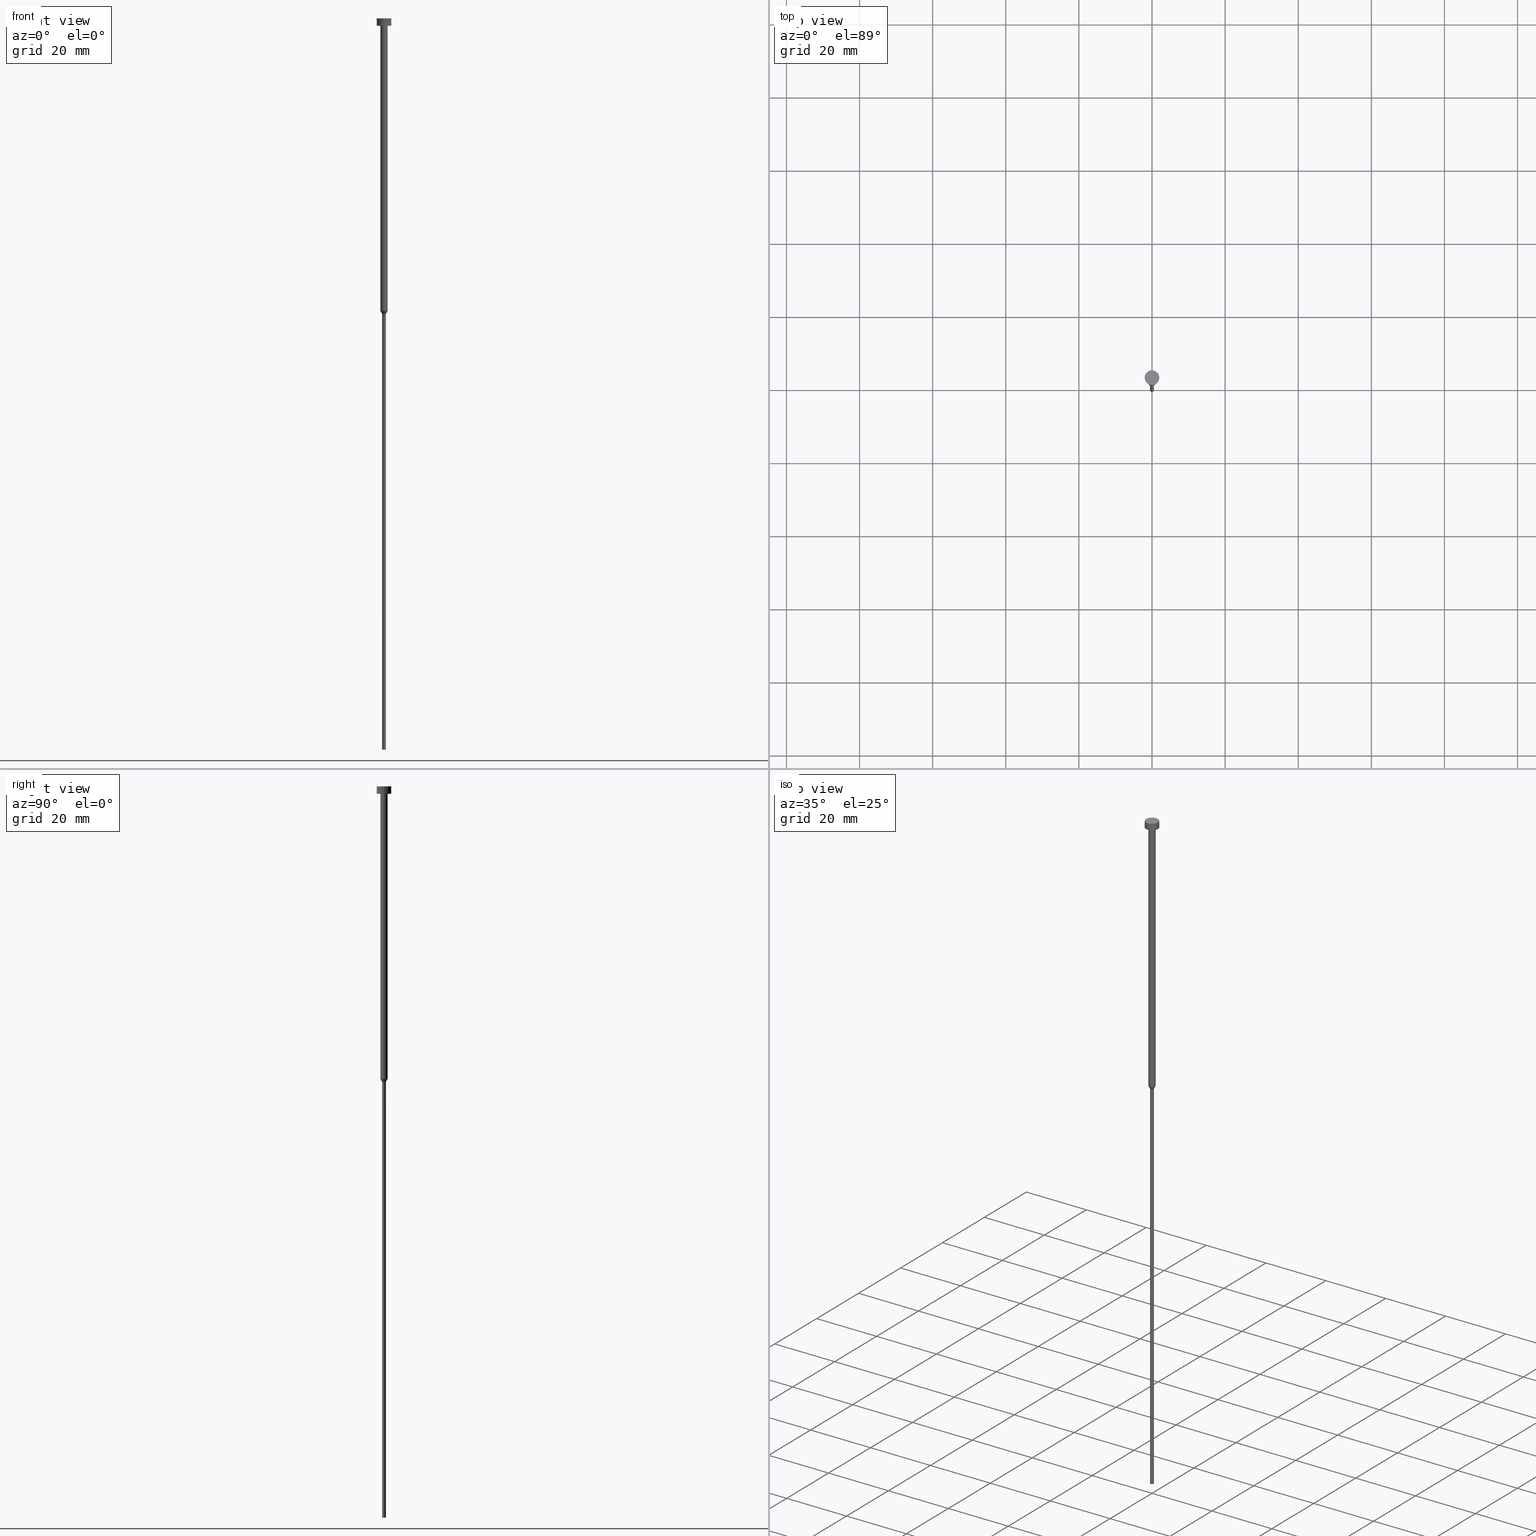
[diagram: canonical four-view strip — front | top / right | iso, engineering-drawing reading convention]
A machine part, canonical four-view strip (front | top / right | iso — engineering-drawing reading convention). The complete STEP part file that produces these views, byte-faithful:
ISO-10303-21;
HEADER;
FILE_DESCRIPTION (( 'STEP AP203' ),
    '1' );
FILE_NAME ('2ebc.STEP',
    '2023-02-13T11:49:57',
    ( '' ),
    ( '' ),
    'SwSTEP 2.0',
    'SolidWorks 2019',
    '' );
FILE_SCHEMA (( 'CONFIG_CONTROL_DESIGN' ));
ENDSEC;

DATA;
#1 = CARTESIAN_POINT ( 'NONE',  ( 0.000000000000000000, 0.000000000000000000, -200.0000000000000000 ) ) ;
#2 = EDGE_LOOP ( 'NONE', ( #197, #101, #283, #254 ) ) ;
#3 = DIRECTION ( 'NONE',  ( 1.000000000000000000, 0.000000000000000000, 0.000000000000000000 ) ) ;
#4 = ORIENTED_EDGE ( 'NONE', *, *, #63, .F. ) ;
#5 = PLANE ( 'NONE',  #255 ) ;
#6 = ORIENTED_EDGE ( 'NONE', *, *, #220, .F. ) ;
#7 = VECTOR ( 'NONE', #84, 1000.000000000000000 ) ;
#8 = APPROVAL ( #51, 'NEUR�EN�' ) ;
#9 = DIRECTION ( 'NONE',  ( -1.000000000000000000, 0.000000000000000000, -0.000000000000000000 ) ) ;
#10 = VERTEX_POINT ( 'NONE', #293 ) ;
#11 = FACE_OUTER_BOUND ( 'NONE', #117, .T. ) ;
#12 = ORIENTED_EDGE ( 'NONE', *, *, #330, .T. ) ;
#13 = FACE_OUTER_BOUND ( 'NONE', #250, .T. ) ;
#14 = ADVANCED_FACE ( 'NONE', ( #181 ), #209, .T. ) ;
#15 = AXIS2_PLACEMENT_3D ( 'NONE', #68, #238, #94 ) ;
#16 = CARTESIAN_POINT ( 'NONE',  ( 0.000000000000000000, 0.000000000000000000, 0.000000000000000000 ) ) ;
#17 = DIRECTION ( 'NONE',  ( -0.000000000000000000, -0.000000000000000000, 1.000000000000000000 ) ) ;
#18 = DIRECTION ( 'NONE',  ( 1.000000000000000000, 0.000000000000000000, 0.000000000000000000 ) ) ;
#19 = ORGANIZATION ( 'NEUR�EN�', 'NEUR�EN�', '' ) ;
#20 =( NAMED_UNIT ( * ) PLANE_ANGLE_UNIT ( ) SI_UNIT ( $, .RADIAN. ) );
#21 = DATE_AND_TIME ( #324, #134 ) ;
#22 = CARTESIAN_POINT ( 'NONE',  ( -1.000000000000003553, 1.224646799147357398E-16, -2.000000000000000444 ) ) ;
#23 = CIRCLE ( 'NONE', #57, 2.000000000000000000 ) ;
#24 = PERSON_AND_ORGANIZATION ( #170, #19 ) ;
#25 = CC_DESIGN_PERSON_AND_ORGANIZATION_ASSIGNMENT ( #24, #26, ( #187 ) ) ;
#26 = PERSON_AND_ORGANIZATION_ROLE ( 'classification_officer' ) ;
#27 = CIRCLE ( 'NONE', #244, 1.000000000000003553 ) ;
#28 = APPROVAL_ROLE ( '' ) ;
#29 = ADVANCED_FACE ( 'NONE', ( #96 ), #214, .T. ) ;
#30 = CARTESIAN_POINT ( 'NONE',  ( -0.5000000000000000000, 6.123233995736766036E-17, 0.000000000000000000 ) ) ;
#31 = CIRCLE ( 'NONE', #194, 0.5000000000000000000 ) ;
#32 = ORIENTED_EDGE ( 'NONE', *, *, #74, .F. ) ;
#33 = DIRECTION ( 'NONE',  ( -0.000000000000000000, -0.000000000000000000, 1.000000000000000000 ) ) ;
#34 = ADVANCED_BREP_SHAPE_REPRESENTATION ( '2ebc', ( #245, #221 ), #174 ) ;
#35 = ORIENTED_EDGE ( 'NONE', *, *, #314, .T. ) ;
#36 = CARTESIAN_POINT ( 'NONE',  ( -2.000000000000000000, 2.449293598294706414E-16, -2.000000000000000444 ) ) ;
#37 = PLANE ( 'NONE',  #148 ) ;
#38 = EDGE_LOOP ( 'NONE', ( #256, #342 ) ) ;
#39 = VECTOR ( 'NONE', #262, 1000.000000000000114 ) ;
#40 = CARTESIAN_POINT ( 'NONE',  ( 2.000000000000000000, 0.000000000000000000, -2.000000000000000444 ) ) ;
#41 = APPLICATION_CONTEXT ( 'configuration controlled 3d designs of mechanical parts and assemblies' ) ;
#42 = DIRECTION ( 'NONE',  ( 1.000000000000000000, 0.000000000000000000, 0.000000000000000000 ) ) ;
#43 = CIRCLE ( 'NONE', #52, 1.000000000000003109 ) ;
#44 = ORIENTED_EDGE ( 'NONE', *, *, #150, .F. ) ;
#45 = CARTESIAN_POINT ( 'NONE',  ( 1.000000000000003109, 0.000000000000000000, -80.00000000000000000 ) ) ;
#46 = CARTESIAN_POINT ( 'NONE',  ( 1.000000000000003331, 0.000000000000000000, 0.000000000000000000 ) ) ;
#47 = AXIS2_PLACEMENT_3D ( 'NONE', #129, #49, #243 ) ;
#48 = CALENDAR_DATE ( 2023, 13, 2 ) ;
#49 = DIRECTION ( 'NONE',  ( -0.000000000000000000, -0.000000000000000000, 1.000000000000000000 ) ) ;
#50 = DATE_AND_TIME ( #299, #167 ) ;
#51 = APPROVAL_STATUS ( 'not_yet_approved' ) ;
#52 = AXIS2_PLACEMENT_3D ( 'NONE', #76, #328, #81 ) ;
#53 = DIRECTION ( 'NONE',  ( -0.000000000000000000, -0.000000000000000000, 1.000000000000000000 ) ) ;
#54 = PERSON_AND_ORGANIZATION ( #170, #19 ) ;
#55 = ORIENTED_EDGE ( 'NONE', *, *, #74, .T. ) ;
#56 = APPLICATION_CONTEXT ( 'configuration controlled 3d designs of mechanical parts and assemblies' ) ;
#57 = AXIS2_PLACEMENT_3D ( 'NONE', #213, #237, #122 ) ;
#58 = CARTESIAN_POINT ( 'NONE',  ( 0.5000000000000000000, 0.000000000000000000, -80.86602540378444814 ) ) ;
#59 = AXIS2_PLACEMENT_3D ( 'NONE', #192, #157, #275 ) ;
#60 = ORIENTED_EDGE ( 'NONE', *, *, #212, .T. ) ;
#61 = CC_DESIGN_PERSON_AND_ORGANIZATION_ASSIGNMENT ( #124, #158, ( #155 ) ) ;
#62 = DIRECTION ( 'NONE',  ( 1.000000000000000000, 0.000000000000000000, 0.000000000000000000 ) ) ;
#63 = EDGE_CURVE ( 'NONE', #10, #90, #332, .T. ) ;
#64 = DIRECTION ( 'NONE',  ( -0.000000000000000000, -0.000000000000000000, 1.000000000000000000 ) ) ;
#65 = APPROVAL_PERSON_ORGANIZATION ( #103, #177, #323 ) ;
#66 = CARTESIAN_POINT ( 'NONE',  ( 0.000000000000000000, 0.000000000000000000, 0.000000000000000000 ) ) ;
#67 = EDGE_LOOP ( 'NONE', ( #60, #252, #151, #89 ) ) ;
#68 = CARTESIAN_POINT ( 'NONE',  ( 0.000000000000000000, 0.000000000000000000, -2.000000000000000444 ) ) ;
#69 = CIRCLE ( 'NONE', #184, 2.000000000000000000 ) ;
#70 = EDGE_LOOP ( 'NONE', ( #6, #35, #211, #312 ) ) ;
#71 = DATE_AND_TIME ( #215, #260 ) ;
#72 = FACE_OUTER_BOUND ( 'NONE', #325, .T. ) ;
#73 = APPROVAL_DATE_TIME ( #21, #8 ) ;
#74 = EDGE_CURVE ( 'NONE', #223, #259, #23, .T. ) ;
#75 = PERSON_AND_ORGANIZATION ( #170, #19 ) ;
#76 = CARTESIAN_POINT ( 'NONE',  ( 0.000000000000000000, 0.000000000000000000, -80.00000000000000000 ) ) ;
#77 = COORDINATED_UNIVERSAL_TIME_OFFSET ( 1, 0, .AHEAD. ) ;
#78 = LINE ( 'NONE', #104, #334 ) ;
#79 = EDGE_LOOP ( 'NONE', ( #278, #12 ) ) ;
#80 = CIRCLE ( 'NONE', #112, 1.000000000000003109 ) ;
#81 = DIRECTION ( 'NONE',  ( 1.000000000000000000, 0.000000000000000000, 0.000000000000000000 ) ) ;
#82 = ORIENTED_EDGE ( 'NONE', *, *, #87, .T. ) ;
#83 = CARTESIAN_POINT ( 'NONE',  ( 0.000000000000000000, -2.000000000000000000, -2.000000000000000444 ) ) ;
#84 = DIRECTION ( 'NONE',  ( -0.000000000000000000, -0.000000000000000000, 1.000000000000000000 ) ) ;
#85 = ORIENTED_EDGE ( 'NONE', *, *, #180, .F. ) ;
#86 = DIRECTION ( 'NONE',  ( 1.000000000000000000, 0.000000000000000000, 0.000000000000000000 ) ) ;
#87 = EDGE_CURVE ( 'NONE', #145, #338, #316, .T. ) ;
#88 = DIRECTION ( 'NONE',  ( -0.000000000000000000, -0.000000000000000000, 1.000000000000000000 ) ) ;
#89 = ORIENTED_EDGE ( 'NONE', *, *, #87, .F. ) ;
#90 = VERTEX_POINT ( 'NONE', #183 ) ;
#91 = ORIENTED_EDGE ( 'NONE', *, *, #355, .F. ) ;
#92 = AXIS2_PLACEMENT_3D ( 'NONE', #331, #224, #282 ) ;
#93 = DIRECTION ( 'NONE',  ( -0.000000000000000000, -0.000000000000000000, 1.000000000000000000 ) ) ;
#94 = DIRECTION ( 'NONE',  ( 1.000000000000000000, 0.000000000000000000, 0.000000000000000000 ) ) ;
#95 = CIRCLE ( 'NONE', #317, 0.5000000000000000000 ) ;
#96 = FACE_OUTER_BOUND ( 'NONE', #230, .T. ) ;
#97 = EDGE_CURVE ( 'NONE', #338, #175, #235, .T. ) ;
#98 = DIRECTION ( 'NONE',  ( -0.000000000000000000, -0.000000000000000000, 1.000000000000000000 ) ) ;
#99 = VECTOR ( 'NONE', #93, 1000.000000000000000 ) ;
#100 = PERSON_AND_ORGANIZATION ( #170, #19 ) ;
#101 = ORIENTED_EDGE ( 'NONE', *, *, #146, .T. ) ;
#102 = CIRCLE ( 'NONE', #307, 0.5000000000000000000 ) ;
#103 = PERSON_AND_ORGANIZATION ( #170, #19 ) ;
#104 = CARTESIAN_POINT ( 'NONE',  ( 2.000000000000000000, 0.000000000000000000, 0.000000000000000000 ) ) ;
#105 = DATE_TIME_ROLE ( 'classification_date' ) ;
#106 = CC_DESIGN_APPROVAL ( #177, ( #240 ) ) ;
#107 = DIRECTION ( 'NONE',  ( 1.000000000000000000, 0.000000000000000000, 0.000000000000000000 ) ) ;
#108 = DIRECTION ( 'NONE',  ( 0.000000000000000000, 0.000000000000000000, -1.000000000000000000 ) ) ;
#109 = EDGE_LOOP ( 'NONE', ( #44, #228, #82, #139 ) ) ;
#110 = LINE ( 'NONE', #311, #141 ) ;
#111 = DIRECTION ( 'NONE',  ( 1.000000000000000000, 0.000000000000000000, 0.000000000000000000 ) ) ;
#112 = AXIS2_PLACEMENT_3D ( 'NONE', #301, #53, #248 ) ;
#113 = VERTEX_POINT ( 'NONE', #320 ) ;
#114 = CARTESIAN_POINT ( 'NONE',  ( -1.000000000000003109, 1.224646799147356905E-16, -80.00000000000000000 ) ) ;
#115 = ORIENTED_EDGE ( 'NONE', *, *, #292, .F. ) ;
#116 = PRODUCT ( '2ebc', '2ebc', '', ( #236 ) ) ;
#117 = EDGE_LOOP ( 'NONE', ( #290, #32 ) ) ;
#118 = CC_DESIGN_SECURITY_CLASSIFICATION ( #187, ( #155 ) ) ;
#119 = LOCAL_TIME ( 12, 49, 57.00000000000000000, #161 ) ;
#120 = CC_DESIGN_PERSON_AND_ORGANIZATION_ASSIGNMENT ( #54, #163, ( #240 ) ) ;
#121 = DIRECTION ( 'NONE',  ( 1.000000000000000000, 0.000000000000000000, 0.000000000000000000 ) ) ;
#122 = DIRECTION ( 'NONE',  ( 1.000000000000000000, 0.000000000000000000, 0.000000000000000000 ) ) ;
#123 = AXIS2_PLACEMENT_3D ( 'NONE', #171, #33, #3 ) ;
#124 = PERSON_AND_ORGANIZATION ( #170, #19 ) ;
#125 = DIRECTION ( 'NONE',  ( -0.000000000000000000, -0.000000000000000000, 1.000000000000000000 ) ) ;
#126 = AXIS2_PLACEMENT_3D ( 'NONE', #154, #288, #121 ) ;
#127 = DATE_AND_TIME ( #326, #119 ) ;
#128 = VECTOR ( 'NONE', #162, 1000.000000000000000 ) ;
#129 = CARTESIAN_POINT ( 'NONE',  ( 0.000000000000000000, 0.000000000000000000, 0.000000000000000000 ) ) ;
#130 = COORDINATED_UNIVERSAL_TIME_OFFSET ( 1, 0, .AHEAD. ) ;
#131 = DIRECTION ( 'NONE',  ( 1.000000000000000000, 0.000000000000000000, 0.000000000000000000 ) ) ;
#132 = CLOSED_SHELL ( 'NONE', ( #344, #135, #29, #182, #267, #322, #310, #14, #296, #193, #166 ) ) ;
#133 = DIRECTION ( 'NONE',  ( -0.000000000000000000, -0.000000000000000000, 1.000000000000000000 ) ) ;
#134 = LOCAL_TIME ( 12, 49, 57.00000000000000000, #130 ) ;
#135 = ADVANCED_FACE ( 'NONE', ( #239 ), #321, .T. ) ;
#136 = DIRECTION ( 'NONE',  ( -0.000000000000000000, -0.000000000000000000, 1.000000000000000000 ) ) ;
#137 = ORIENTED_EDGE ( 'NONE', *, *, #337, .T. ) ;
#138 = CARTESIAN_POINT ( 'NONE',  ( 0.000000000000000000, 0.000000000000000000, -2.000000000000000444 ) ) ;
#139 = ORIENTED_EDGE ( 'NONE', *, *, #330, .F. ) ;
#140 = LINE ( 'NONE', #152, #345 ) ;
#141 = VECTOR ( 'NONE', #279, 1000.000000000000114 ) ;
#142 = ORIENTED_EDGE ( 'NONE', *, *, #272, .F. ) ;
#143 = PRODUCT_RELATED_PRODUCT_CATEGORY ( 'detail', '', ( #116 ) ) ;
#144 = FACE_OUTER_BOUND ( 'NONE', #2, .T. ) ;
#145 = VERTEX_POINT ( 'NONE', #45 ) ;
#146 = EDGE_CURVE ( 'NONE', #113, #339, #271, .T. ) ;
#147 = APPLICATION_PROTOCOL_DEFINITION ( 'international standard', 'config_control_design', 1994, #41 ) ;
#148 = AXIS2_PLACEMENT_3D ( 'NONE', #83, #173, #9 ) ;
#149 = APPROVAL ( #191, 'NEUR�EN�' ) ;
#150 = EDGE_CURVE ( 'NONE', #274, #175, #270, .T. ) ;
#151 = ORIENTED_EDGE ( 'NONE', *, *, #97, .F. ) ;
#152 = CARTESIAN_POINT ( 'NONE',  ( -2.000000000000000000, 2.449293598294706414E-16, 0.000000000000000000 ) ) ;
#153 = EDGE_CURVE ( 'NONE', #274, #145, #43, .T. ) ;
#154 = CARTESIAN_POINT ( 'NONE',  ( 0.000000000000000000, 0.000000000000000000, -80.00000000000000000 ) ) ;
#155 = PRODUCT_DEFINITION_FORMATION_WITH_SPECIFIED_SOURCE ( 'LIBOVOLN�', '', #116, .NOT_KNOWN. ) ;
#156 = DATE_AND_TIME ( #48, #313 ) ;
#157 = DIRECTION ( 'NONE',  ( -0.000000000000000000, -0.000000000000000000, 1.000000000000000000 ) ) ;
#158 = PERSON_AND_ORGANIZATION_ROLE ( 'design_supplier' ) ;
#159 = APPROVAL_DATE_TIME ( #50, #149 ) ;
#160 = CIRCLE ( 'NONE', #92, 2.000000000000000000 ) ;
#161 = COORDINATED_UNIVERSAL_TIME_OFFSET ( 1, 0, .AHEAD. ) ;
#162 = DIRECTION ( 'NONE',  ( -0.000000000000000000, -0.000000000000000000, 1.000000000000000000 ) ) ;
#163 = PERSON_AND_ORGANIZATION_ROLE ( 'creator' ) ;
#164 = CARTESIAN_POINT ( 'NONE',  ( 0.000000000000000000, 0.000000000000000000, -200.0000000000000000 ) ) ;
#165 = ORIENTED_EDGE ( 'NONE', *, *, #337, .F. ) ;
#166 = ADVANCED_FACE ( 'NONE', ( #72 ), #247, .T. ) ;
#167 = LOCAL_TIME ( 12, 49, 57.00000000000000000, #300 ) ;
#168 = FACE_OUTER_BOUND ( 'NONE', #70, .T. ) ;
#169 = EDGE_LOOP ( 'NONE', ( #165, #55, #280, #4 ) ) ;
#170 = PERSON ( 'NEUR�EN�', 'NEUR�EN�', 'NEUR�EN�', ('NEUR�EN�'), ('NEUR�EN�'), ('NEUR�EN�') ) ;
#171 = CARTESIAN_POINT ( 'NONE',  ( 0.000000000000000000, 0.000000000000000000, -80.00000000000000000 ) ) ;
#172 = LINE ( 'NONE', #30, #7 ) ;
#173 = DIRECTION ( 'NONE',  ( 0.000000000000000000, 0.000000000000000000, -1.000000000000000000 ) ) ;
#174 =( GEOMETRIC_REPRESENTATION_CONTEXT ( 3 ) GLOBAL_UNCERTAINTY_ASSIGNED_CONTEXT ( ( #285 ) ) GLOBAL_UNIT_ASSIGNED_CONTEXT ( ( #318, #20, #229 ) ) REPRESENTATION_CONTEXT ( 'NONE', 'WORKASPACE' ) );
#175 = VERTEX_POINT ( 'NONE', #22 ) ;
#176 = DIRECTION ( 'NONE',  ( -0.000000000000000000, -0.000000000000000000, 1.000000000000000000 ) ) ;
#177 = APPROVAL ( #349, 'NEUR�EN�' ) ;
#178 = DIRECTION ( 'NONE',  ( 0.000000000000000000, 0.000000000000000000, 1.000000000000000000 ) ) ;
#179 = AXIS2_PLACEMENT_3D ( 'NONE', #261, #234, #264 ) ;
#180 = EDGE_CURVE ( 'NONE', #339, #306, #269, .T. ) ;
#181 = FACE_OUTER_BOUND ( 'NONE', #109, .T. ) ;
#182 = ADVANCED_FACE ( 'NONE', ( #190 ), #295, .T. ) ;
#183 = CARTESIAN_POINT ( 'NONE',  ( 2.000000000000000000, 0.000000000000000000, -2.449293598294705921E-16 ) ) ;
#184 = AXIS2_PLACEMENT_3D ( 'NONE', #199, #64, #336 ) ;
#185 = DIRECTION ( 'NONE',  ( 1.000000000000000000, 0.000000000000000000, 0.000000000000000000 ) ) ;
#186 = COORDINATED_UNIVERSAL_TIME_OFFSET ( 1, 0, .AHEAD. ) ;
#187 = SECURITY_CLASSIFICATION ( '', '', #268 ) ;
#188 = PERSON_AND_ORGANIZATION ( #170, #19 ) ;
#189 = APPROVAL_ROLE ( '' ) ;
#190 = FACE_OUTER_BOUND ( 'NONE', #309, .T. ) ;
#191 = APPROVAL_STATUS ( 'not_yet_approved' ) ;
#192 = CARTESIAN_POINT ( 'NONE',  ( 0.000000000000000000, 0.000000000000000000, 0.000000000000000000 ) ) ;
#193 = ADVANCED_FACE ( 'NONE', ( #246 ), #351, .T. ) ;
#194 = AXIS2_PLACEMENT_3D ( 'NONE', #277, #136, #251 ) ;
#195 = PERSON_AND_ORGANIZATION ( #170, #19 ) ;
#196 = CARTESIAN_POINT ( 'NONE',  ( 0.5000000000000000000, 0.000000000000000000, 0.000000000000000000 ) ) ;
#197 = ORIENTED_EDGE ( 'NONE', *, *, #263, .F. ) ;
#198 = CC_DESIGN_DATE_AND_TIME_ASSIGNMENT ( #127, #105, ( #187 ) ) ;
#199 = CARTESIAN_POINT ( 'NONE',  ( 0.000000000000000000, 0.000000000000000000, -2.449293598294705921E-16 ) ) ;
#200 = AXIS2_PLACEMENT_3D ( 'NONE', #353, #266, #107 ) ;
#201 = EDGE_CURVE ( 'NONE', #259, #90, #78, .T. ) ;
#202 = ORIENTED_EDGE ( 'NONE', *, *, #231, .T. ) ;
#203 = CARTESIAN_POINT ( 'NONE',  ( 0.000000000000000000, 0.000000000000000000, -80.86602540378444814 ) ) ;
#204 = ORIENTED_EDGE ( 'NONE', *, *, #219, .T. ) ;
#205 = DIRECTION ( 'NONE',  ( 1.000000000000000000, 0.000000000000000000, 0.000000000000000000 ) ) ;
#206 = CARTESIAN_POINT ( 'NONE',  ( 0.000000000000000000, 0.000000000000000000, 0.000000000000000000 ) ) ;
#207 = ORIENTED_EDGE ( 'NONE', *, *, #263, .T. ) ;
#208 = CARTESIAN_POINT ( 'NONE',  ( 1.000000000000003109, 0.000000000000000000, -80.00000000000000000 ) ) ;
#209 = CYLINDRICAL_SURFACE ( 'NONE', #286, 1.000000000000003331 ) ;
#210 = PRODUCT_DEFINITION_SHAPE ( 'NONE', 'NONE',  #240 ) ;
#211 = ORIENTED_EDGE ( 'NONE', *, *, #355, .T. ) ;
#212 = EDGE_CURVE ( 'NONE', #145, #274, #80, .T. ) ;
#213 = CARTESIAN_POINT ( 'NONE',  ( 0.000000000000000000, 0.000000000000000000, -2.000000000000000444 ) ) ;
#214 = CONICAL_SURFACE ( 'NONE', #126, 1.000000000000003109, 0.5235987755982994818 ) ;
#215 = CALENDAR_DATE ( 2023, 13, 2 ) ;
#216 = VERTEX_POINT ( 'NONE', #302 ) ;
#217 = CONICAL_SURFACE ( 'NONE', #123, 1.000000000000003109, 0.5235987755982994818 ) ;
#218 = CARTESIAN_POINT ( 'NONE',  ( -1.000000000000003331, 1.224646799147357151E-16, 0.000000000000000000 ) ) ;
#219 = EDGE_CURVE ( 'NONE', #339, #113, #102, .T. ) ;
#220 = EDGE_CURVE ( 'NONE', #216, #274, #110, .T. ) ;
#221 = AXIS2_PLACEMENT_3D ( 'NONE', #206, #178, #287 ) ;
#222 = DIRECTION ( 'NONE',  ( -1.000000000000000000, 0.000000000000000000, -0.000000000000000000 ) ) ;
#223 = VERTEX_POINT ( 'NONE', #36 ) ;
#224 = DIRECTION ( 'NONE',  ( -0.000000000000000000, -0.000000000000000000, 1.000000000000000000 ) ) ;
#225 = AXIS2_PLACEMENT_3D ( 'NONE', #66, #176, #42 ) ;
#226 = FACE_OUTER_BOUND ( 'NONE', #38, .T. ) ;
#227 = ORIENTED_EDGE ( 'NONE', *, *, #292, .T. ) ;
#228 = ORIENTED_EDGE ( 'NONE', *, *, #153, .T. ) ;
#229 =( NAMED_UNIT ( * ) SI_UNIT ( $, .STERADIAN. ) SOLID_ANGLE_UNIT ( ) );
#230 = EDGE_LOOP ( 'NONE', ( #227, #315, #276, #91 ) ) ;
#231 = EDGE_CURVE ( 'NONE', #259, #223, #160, .T. ) ;
#232 = AXIS2_PLACEMENT_3D ( 'NONE', #348, #98, #185 ) ;
#233 = CARTESIAN_POINT ( 'NONE',  ( 1.000000000000003553, 0.000000000000000000, -2.000000000000000444 ) ) ;
#234 = DIRECTION ( 'NONE',  ( -0.000000000000000000, -0.000000000000000000, 1.000000000000000000 ) ) ;
#235 = CIRCLE ( 'NONE', #15, 1.000000000000003553 ) ;
#236 = MECHANICAL_CONTEXT ( 'NONE', #41, 'mechanical' ) ;
#237 = DIRECTION ( 'NONE',  ( -0.000000000000000000, -0.000000000000000000, 1.000000000000000000 ) ) ;
#238 = DIRECTION ( 'NONE',  ( -0.000000000000000000, -0.000000000000000000, 1.000000000000000000 ) ) ;
#239 = FACE_OUTER_BOUND ( 'NONE', #67, .T. ) ;
#240 = PRODUCT_DEFINITION ( 'NEZN�M�', '', #155, #319 ) ;
#241 = APPROVAL_DATE_TIME ( #71, #177 ) ;
#242 = PERSON_AND_ORGANIZATION_ROLE ( 'design_owner' ) ;
#243 = DIRECTION ( 'NONE',  ( 1.000000000000000000, 0.000000000000000000, 0.000000000000000000 ) ) ;
#244 = AXIS2_PLACEMENT_3D ( 'NONE', #138, #308, #62 ) ;
#245 = MANIFOLD_SOLID_BREP ( 'Rotovat1', #132 ) ;
#246 = FACE_OUTER_BOUND ( 'NONE', #169, .T. ) ;
#247 = PLANE ( 'NONE',  #200 ) ;
#248 = DIRECTION ( 'NONE',  ( 1.000000000000000000, 0.000000000000000000, 0.000000000000000000 ) ) ;
#249 = AXIS2_PLACEMENT_3D ( 'NONE', #346, #133, #131 ) ;
#250 = EDGE_LOOP ( 'NONE', ( #202, #137, #142, #303 ) ) ;
#251 = DIRECTION ( 'NONE',  ( 1.000000000000000000, 0.000000000000000000, 0.000000000000000000 ) ) ;
#252 = ORIENTED_EDGE ( 'NONE', *, *, #150, .T. ) ;
#253 = DIRECTION ( 'NONE',  ( -0.000000000000000000, -0.000000000000000000, 1.000000000000000000 ) ) ;
#254 = ORIENTED_EDGE ( 'NONE', *, *, #314, .F. ) ;
#255 = AXIS2_PLACEMENT_3D ( 'NONE', #1, #108, #222 ) ;
#256 = ORIENTED_EDGE ( 'NONE', *, *, #219, .F. ) ;
#257 = CYLINDRICAL_SURFACE ( 'NONE', #297, 0.5000000000000000000 ) ;
#258 = DIRECTION ( 'NONE',  ( -0.000000000000000000, -0.000000000000000000, 1.000000000000000000 ) ) ;
#259 = VERTEX_POINT ( 'NONE', #40 ) ;
#260 = LOCAL_TIME ( 12, 49, 57.00000000000000000, #77 ) ;
#261 = CARTESIAN_POINT ( 'NONE',  ( 0.000000000000000000, 0.000000000000000000, -2.449293598294705921E-16 ) ) ;
#262 = DIRECTION ( 'NONE',  ( 0.5000000000000005551, 0.000000000000000000, 0.8660254037844382635 ) ) ;
#263 = EDGE_CURVE ( 'NONE', #113, #216, #172, .T. ) ;
#264 = DIRECTION ( 'NONE',  ( 1.000000000000000000, 0.000000000000000000, 0.000000000000000000 ) ) ;
#265 = DATE_TIME_ROLE ( 'creation_date' ) ;
#266 = DIRECTION ( 'NONE',  ( 0.000000000000000000, -0.000000000000000000, 1.000000000000000000 ) ) ;
#267 = ADVANCED_FACE ( 'NONE', ( #226 ), #5, .T. ) ;
#268 = SECURITY_CLASSIFICATION_LEVEL ( 'unclassified' ) ;
#269 = LINE ( 'NONE', #196, #128 ) ;
#270 = LINE ( 'NONE', #218, #289 ) ;
#271 = CIRCLE ( 'NONE', #249, 0.5000000000000000000 ) ;
#272 = EDGE_CURVE ( 'NONE', #90, #10, #69, .T. ) ;
#273 = APPLICATION_PROTOCOL_DEFINITION ( 'international standard', 'config_control_design', 1994, #56 ) ;
#274 = VERTEX_POINT ( 'NONE', #114 ) ;
#275 = DIRECTION ( 'NONE',  ( 1.000000000000000000, 0.000000000000000000, 0.000000000000000000 ) ) ;
#276 = ORIENTED_EDGE ( 'NONE', *, *, #212, .F. ) ;
#277 = CARTESIAN_POINT ( 'NONE',  ( 0.000000000000000000, 0.000000000000000000, -80.86602540378444814 ) ) ;
#278 = ORIENTED_EDGE ( 'NONE', *, *, #97, .T. ) ;
#279 = DIRECTION ( 'NONE',  ( -0.5000000000000005551, 6.123233995736773431E-17, 0.8660254037844382635 ) ) ;
#280 = ORIENTED_EDGE ( 'NONE', *, *, #201, .T. ) ;
#281 = ORIENTED_EDGE ( 'NONE', *, *, #272, .T. ) ;
#282 = DIRECTION ( 'NONE',  ( 1.000000000000000000, 0.000000000000000000, 0.000000000000000000 ) ) ;
#283 = ORIENTED_EDGE ( 'NONE', *, *, #180, .T. ) ;
#284 = CYLINDRICAL_SURFACE ( 'NONE', #225, 2.000000000000000000 ) ;
#285 = UNCERTAINTY_MEASURE_WITH_UNIT (LENGTH_MEASURE( 1.000000000000000082E-05 ), #318, 'distance_accuracy_value', 'NONE');
#286 = AXIS2_PLACEMENT_3D ( 'NONE', #16, #17, #18 ) ;
#287 = DIRECTION ( 'NONE',  ( 1.000000000000000000, 0.000000000000000000, 0.000000000000000000 ) ) ;
#288 = DIRECTION ( 'NONE',  ( -0.000000000000000000, -0.000000000000000000, 1.000000000000000000 ) ) ;
#289 = VECTOR ( 'NONE', #327, 1000.000000000000000 ) ;
#290 = ORIENTED_EDGE ( 'NONE', *, *, #231, .F. ) ;
#291 = ORIENTED_EDGE ( 'NONE', *, *, #63, .T. ) ;
#292 = EDGE_CURVE ( 'NONE', #306, #216, #95, .T. ) ;
#293 = CARTESIAN_POINT ( 'NONE',  ( -2.000000000000000000, 2.449293598294706414E-16, -2.449293598294705921E-16 ) ) ;
#294 = CC_DESIGN_PERSON_AND_ORGANIZATION_ASSIGNMENT ( #188, #298, ( #155 ) ) ;
#295 = CYLINDRICAL_SURFACE ( 'NONE', #47, 0.5000000000000000000 ) ;
#296 = ADVANCED_FACE ( 'NONE', ( #305, #11 ), #37, .T. ) ;
#297 = AXIS2_PLACEMENT_3D ( 'NONE', #333, #88, #86 ) ;
#298 = PERSON_AND_ORGANIZATION_ROLE ( 'creator' ) ;
#299 = CALENDAR_DATE ( 2023, 13, 2 ) ;
#300 = COORDINATED_UNIVERSAL_TIME_OFFSET ( 1, 0, .AHEAD. ) ;
#301 = CARTESIAN_POINT ( 'NONE',  ( 0.000000000000000000, 0.000000000000000000, -80.00000000000000000 ) ) ;
#302 = CARTESIAN_POINT ( 'NONE',  ( -0.5000000000000000000, 6.123233995736766036E-17, -80.86602540378444814 ) ) ;
#303 = ORIENTED_EDGE ( 'NONE', *, *, #201, .F. ) ;
#304 = CC_DESIGN_PERSON_AND_ORGANIZATION_ASSIGNMENT ( #195, #242, ( #116 ) ) ;
#305 = FACE_BOUND ( 'NONE', #79, .T. ) ;
#306 = VERTEX_POINT ( 'NONE', #58 ) ;
#307 = AXIS2_PLACEMENT_3D ( 'NONE', #164, #329, #205 ) ;
#308 = DIRECTION ( 'NONE',  ( -0.000000000000000000, -0.000000000000000000, 1.000000000000000000 ) ) ;
#309 = EDGE_LOOP ( 'NONE', ( #204, #207, #115, #85 ) ) ;
#310 = ADVANCED_FACE ( 'NONE', ( #168 ), #217, .T. ) ;
#311 = CARTESIAN_POINT ( 'NONE',  ( -1.000000000000003109, 1.224646799147356905E-16, -80.00000000000000000 ) ) ;
#312 = ORIENTED_EDGE ( 'NONE', *, *, #153, .F. ) ;
#313 = LOCAL_TIME ( 12, 49, 57.00000000000000000, #186 ) ;
#314 = EDGE_CURVE ( 'NONE', #216, #306, #31, .T. ) ;
#315 = ORIENTED_EDGE ( 'NONE', *, *, #220, .T. ) ;
#316 = LINE ( 'NONE', #46, #99 ) ;
#317 = AXIS2_PLACEMENT_3D ( 'NONE', #203, #253, #111 ) ;
#318 =( LENGTH_UNIT ( ) NAMED_UNIT ( * ) SI_UNIT ( .MILLI., .METRE. ) );
#319 = DESIGN_CONTEXT ( 'detailed design', #56, 'design' ) ;
#320 = CARTESIAN_POINT ( 'NONE',  ( -0.5000000000000000000, 6.123233995736766036E-17, -200.0000000000000000 ) ) ;
#321 = CYLINDRICAL_SURFACE ( 'NONE', #232, 1.000000000000003331 ) ;
#322 = ADVANCED_FACE ( 'NONE', ( #144 ), #257, .T. ) ;
#323 = APPROVAL_ROLE ( '' ) ;
#324 = CALENDAR_DATE ( 2023, 13, 2 ) ;
#325 = EDGE_LOOP ( 'NONE', ( #281, #291 ) ) ;
#326 = CALENDAR_DATE ( 2023, 13, 2 ) ;
#327 = DIRECTION ( 'NONE',  ( -0.000000000000000000, -0.000000000000000000, 1.000000000000000000 ) ) ;
#328 = DIRECTION ( 'NONE',  ( -0.000000000000000000, -0.000000000000000000, 1.000000000000000000 ) ) ;
#329 = DIRECTION ( 'NONE',  ( -0.000000000000000000, -0.000000000000000000, 1.000000000000000000 ) ) ;
#330 = EDGE_CURVE ( 'NONE', #175, #338, #27, .T. ) ;
#331 = CARTESIAN_POINT ( 'NONE',  ( 0.000000000000000000, 0.000000000000000000, -2.000000000000000444 ) ) ;
#332 = CIRCLE ( 'NONE', #179, 2.000000000000000000 ) ;
#333 = CARTESIAN_POINT ( 'NONE',  ( 0.000000000000000000, 0.000000000000000000, 0.000000000000000000 ) ) ;
#334 = VECTOR ( 'NONE', #125, 1000.000000000000000 ) ;
#335 = CC_DESIGN_APPROVAL ( #149, ( #187 ) ) ;
#336 = DIRECTION ( 'NONE',  ( 1.000000000000000000, 0.000000000000000000, 0.000000000000000000 ) ) ;
#337 = EDGE_CURVE ( 'NONE', #223, #10, #140, .T. ) ;
#338 = VERTEX_POINT ( 'NONE', #233 ) ;
#339 = VERTEX_POINT ( 'NONE', #343 ) ;
#340 = CC_DESIGN_APPROVAL ( #8, ( #155 ) ) ;
#341 = LINE ( 'NONE', #208, #39 ) ;
#342 = ORIENTED_EDGE ( 'NONE', *, *, #146, .F. ) ;
#343 = CARTESIAN_POINT ( 'NONE',  ( 0.5000000000000000000, 0.000000000000000000, -200.0000000000000000 ) ) ;
#344 = ADVANCED_FACE ( 'NONE', ( #13 ), #284, .T. ) ;
#345 = VECTOR ( 'NONE', #258, 1000.000000000000000 ) ;
#346 = CARTESIAN_POINT ( 'NONE',  ( 0.000000000000000000, 0.000000000000000000, -200.0000000000000000 ) ) ;
#347 = CC_DESIGN_DATE_AND_TIME_ASSIGNMENT ( #156, #265, ( #240 ) ) ;
#348 = CARTESIAN_POINT ( 'NONE',  ( 0.000000000000000000, 0.000000000000000000, 0.000000000000000000 ) ) ;
#349 = APPROVAL_STATUS ( 'not_yet_approved' ) ;
#350 = APPROVAL_PERSON_ORGANIZATION ( #75, #149, #189 ) ;
#351 = CYLINDRICAL_SURFACE ( 'NONE', #59, 2.000000000000000000 ) ;
#352 = SHAPE_DEFINITION_REPRESENTATION ( #210, #34 ) ;
#353 = CARTESIAN_POINT ( 'NONE',  ( 0.000000000000000000, 0.000000000000000000, -1.224646799147352961E-16 ) ) ;
#354 = APPROVAL_PERSON_ORGANIZATION ( #100, #8, #28 ) ;
#355 = EDGE_CURVE ( 'NONE', #306, #145, #341, .T. ) ;
ENDSEC;
END-ISO-10303-21;
